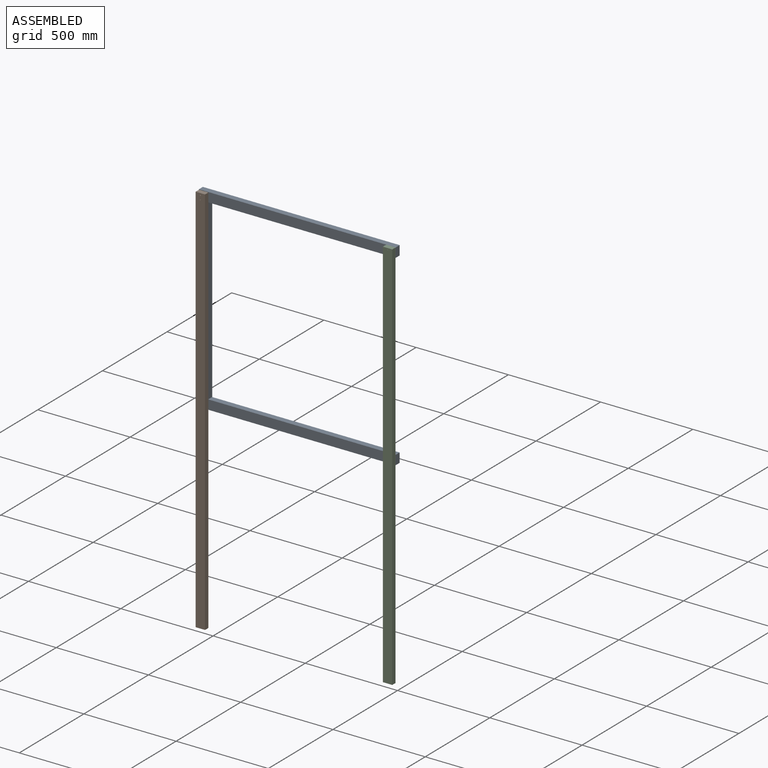
[diagram: assembled view]
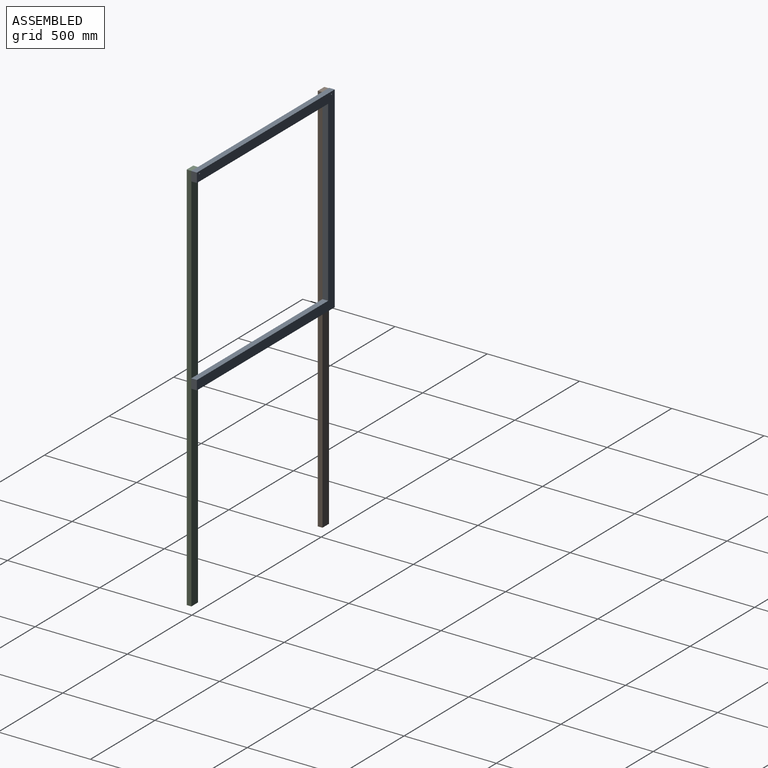
[diagram: assembled view, second angle]
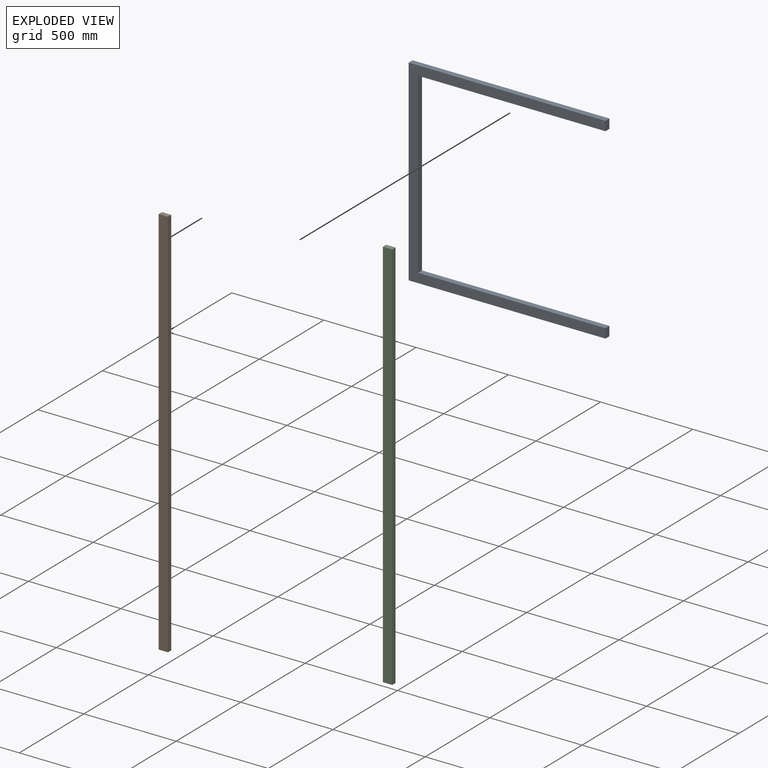
[diagram: exploded view]
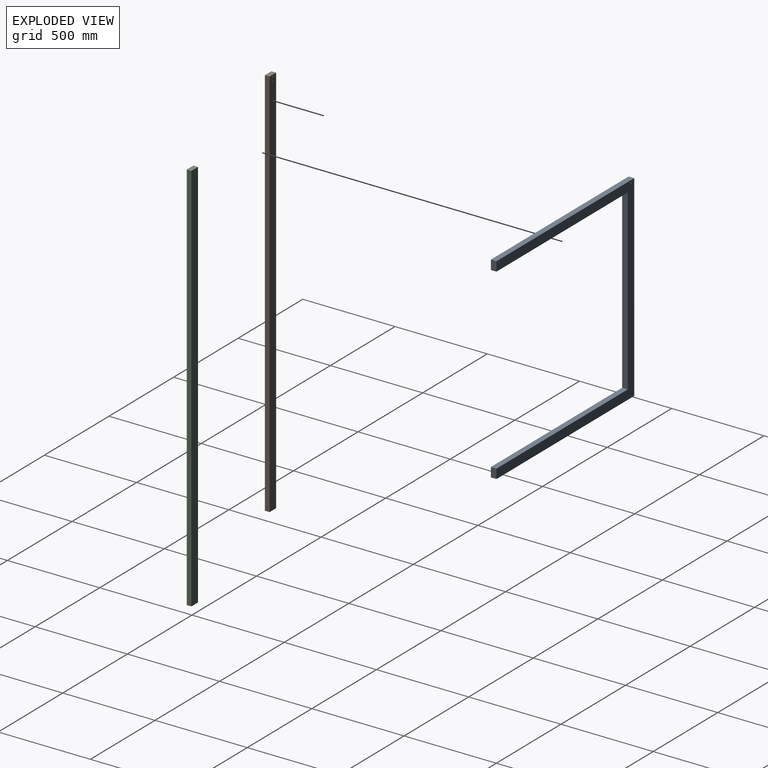
[diagram: exploded view, second angle]
ASSEMBLY  parts=3 mates=2
PART A: 12 faces, bbox 1066.8x30.5x1066.8 mm
  f0: plane 1066.8x30.48mm, normal (0,0,1), area 32516.1mm2, adj f1,f7,f8,f9
  f1: plane 1066.8x30.48mm, normal (-1,0,0), area 32516.1mm2, adj f0,f2,f8,f9
  f2: plane 1066.8x30.48mm, normal (0,0,-1), area 32516.1mm2, adj f1,f3,f8,f9
  f3: plane 50.8x30.48mm, normal (1,0,0), area 1548.4mm2, adj f2,f4,f8,f9
  f4: plane 1016x30.48mm, normal (0,0,1), area 30967.7mm2, adj f3,f5,f8,f9
  f5: plane 965.2x30.48mm, normal (1,0,0), area 29419.3mm2, adj f4,f6,f8,f9
  f6: plane 1016x30.48mm, normal (0,0,-1), area 30967.7mm2, adj f5,f7,f8,f9
  f7: plane 50.8x30.48mm, normal (1,0,0), area 1548.4mm2, adj f0,f6,f8,f9
  f8: plane 1066.8x1066.8mm, normal (0,-1,0), area 157350.5mm2, adj f0,f1,f2,f3,f4,f5,f6,f7
  f9: plane 1066.8x1066.8mm, normal (0,1,0), area 157350.5mm2, adj f0,f1,f2,f3,f4,f5,f6,f7
  f10: cylinder r=3.4mm len=30.48mm, axis (0,1,0), area 651.9mm2, adj f8,f9
  f11: cylinder r=3.2mm len=30.48mm, axis (0,1,0), area 612.8mm2, adj f8,f9
PART B: 8 faces, bbox 50.8x25.4x2133.6 mm
  f0: plane 50.8x25.4mm, normal (0,0,1), area 1290.3mm2, adj f1,f3,f4,f5
  f1: plane 2133.6x25.4mm, normal (-1,0,0), area 54193.4mm2, adj f0,f2,f4,f5
  f2: plane 50.8x25.4mm, normal (0,0,-1), area 1290.3mm2, adj f1,f3,f4,f5
  f3: plane 2133.6x25.4mm, normal (1,0,0), area 54193.4mm2, adj f0,f2,f4,f5
  f4: plane 2133.6x50.8mm, normal (0,-1,0), area 108344mm2, adj f0,f1,f2,f3,f6,f7
  f5: plane 2133.6x50.8mm, normal (0,1,0), area 108344mm2, adj f0,f1,f2,f3,f6,f7
  f6: cylinder r=2.55mm len=25.4mm, axis (0,1,0), area 407.6mm2, adj f4,f5
  f7: cylinder r=2.67mm len=25.4mm, axis (0,1,0), area 426mm2, adj f4,f5
PART C: 7 faces, bbox 50.8x25.4x2133.6 mm
  f0: plane 50.8x25.4mm, normal (0,0,1), area 1290.3mm2, adj f1,f3,f4,f5
  f1: plane 2133.6x25.4mm, normal (-1,0,0), area 54193.4mm2, adj f0,f2,f4,f5
  f2: plane 50.8x25.4mm, normal (0,0,-1), area 1290.3mm2, adj f1,f3,f4,f5
  f3: plane 2133.6x25.4mm, normal (1,0,0), area 54193.4mm2, adj f0,f2,f4,f5
  f4: plane 2133.6x50.8mm, normal (0,-1,0), area 108378.2mm2, adj f0,f1,f2,f3,f6
  f5: plane 2133.6x50.8mm, normal (0,1,0), area 108378.2mm2, adj f0,f1,f2,f3,f6
  f6: cylinder r=1.66mm len=25.4mm, axis (0,1,0), area 265.5mm2, adj f4,f5
PLACE A t=(-13.62,23.54,10.15)mm
PLACE B t=(-547.04,-6.94,-1058.89)mm
PLACE C t=(468.76,-6.94,-1056.77)mm
MATE fastened C.f6 <-> A.f8  axis (0,1,0) through (468.76,-6.94,1068.08)mm
MATE fastened B.f7 <-> A.f10  axis (0,1,0) through (-547.04,-6.94,1063.77)mm
